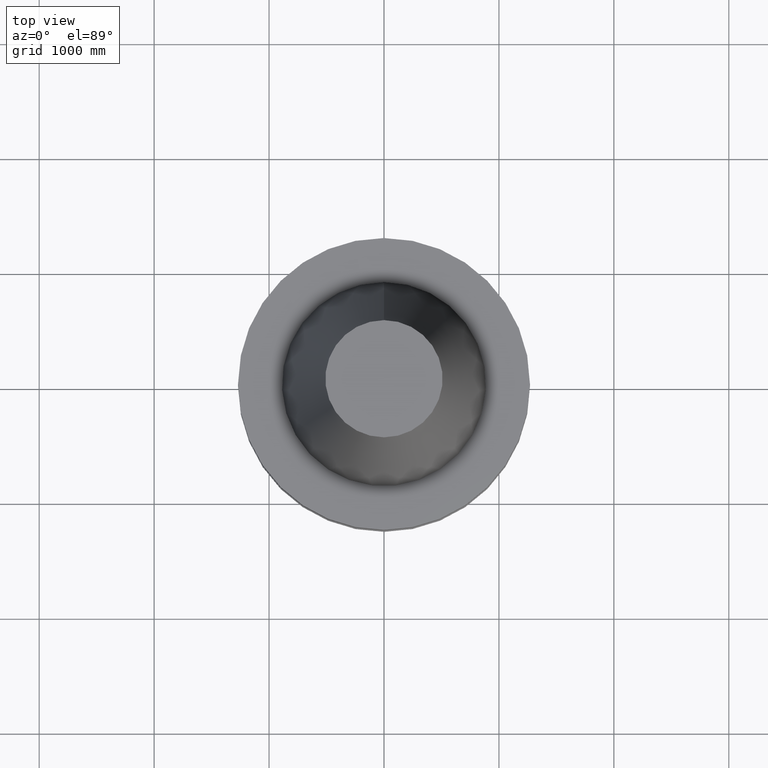
[diagram: clean part render]
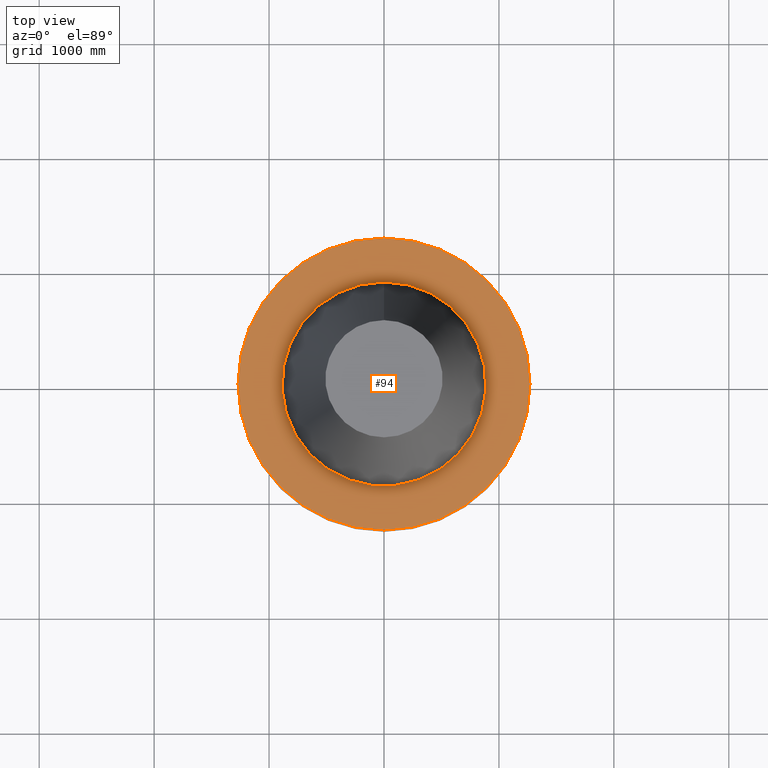
[diagram: same view with one face highlighted and labeled with its STEP entity id]
A machine part, top view. The second image highlights one B-rep face of the part: STEP entity #94.
In plain terms, the highlighted planar face has unit normal (-0, -0, 1).
Its self-contained STEP definition (entity closure, byte-faithful):
#75=EDGE_CURVE('Unnamed[1]',#201,#201,#202,.T.);
#94=ADVANCED_FACE('Unnamed[1]',(#231,#232),#233,.T.);
#106=EDGE_CURVE('Unnamed[1]',#250,#250,#251,.T.);
#201=VERTEX_POINT('',#377);
#202=CIRCLE('',#378,50.0);
#231=FACE_BOUND('',#414,.T.);
#232=FACE_OUTER_BOUND('',#415,.T.);
#233=PLANE('',#416);
#250=VERTEX_POINT('',#438);
#251=CIRCLE('',#439,34.925);
#377=CARTESIAN_POINT('',(9.18485099360509E-017,50.0,-1.49999999999999));
#378=AXIS2_PLACEMENT_3D('',#580,#581,#582);
#414=EDGE_LOOP('',(#614));
#415=EDGE_LOOP('',(#615));
#416=AXIS2_PLACEMENT_3D('',#616,#617,#618);
#438=CARTESIAN_POINT('',(9.18485099360511E-017,34.925,-1.5));
#439=AXIS2_PLACEMENT_3D('',#636,#637,#638);
#580=CARTESIAN_POINT('',(9.18485099360515E-017,1.29959575562706E-014,-1.5));
#581=DIRECTION('',(-6.12323399573677E-017,1.40684069917098E-019,1.0));
#582=DIRECTION('',(-4.81853831597521E-033,1.0,-1.40684069917098E-019));
#614=ORIENTED_EDGE('',*,*,#106,.F.);
#615=ORIENTED_EDGE('',*,*,#75,.T.);
#616=CARTESIAN_POINT('',(9.1848509936051E-017,42.4625,-1.49999999999999));
#617=DIRECTION('',(-6.12323399573677E-017,-1.22464679914735E-016,1.0));
#618=DIRECTION('',(-1.23259516440783E-032,1.0,1.22464679914735E-016));
#636=CARTESIAN_POINT('',(9.18485099360515E-017,1.29959575562706E-014,-1.5));
#637=DIRECTION('',(-6.12323399573677E-017,1.4068406993625E-019,1.0));
#638=DIRECTION('',(-4.81853831597758E-033,1.0,-1.4068406993625E-019));